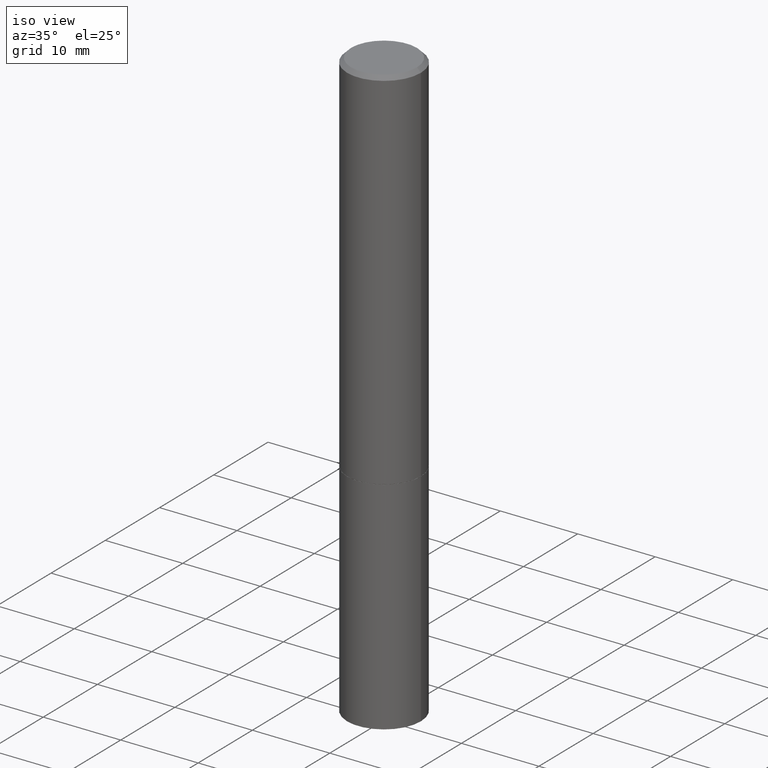
[diagram: clean part render]
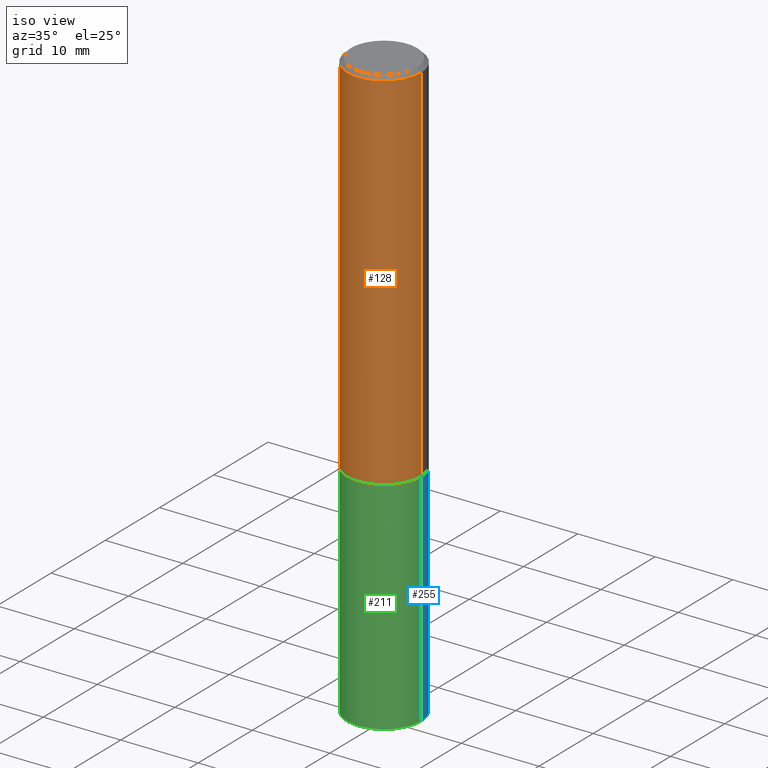
[diagram: same view with three faces highlighted in distinct colors, each labeled with its STEP entity id]
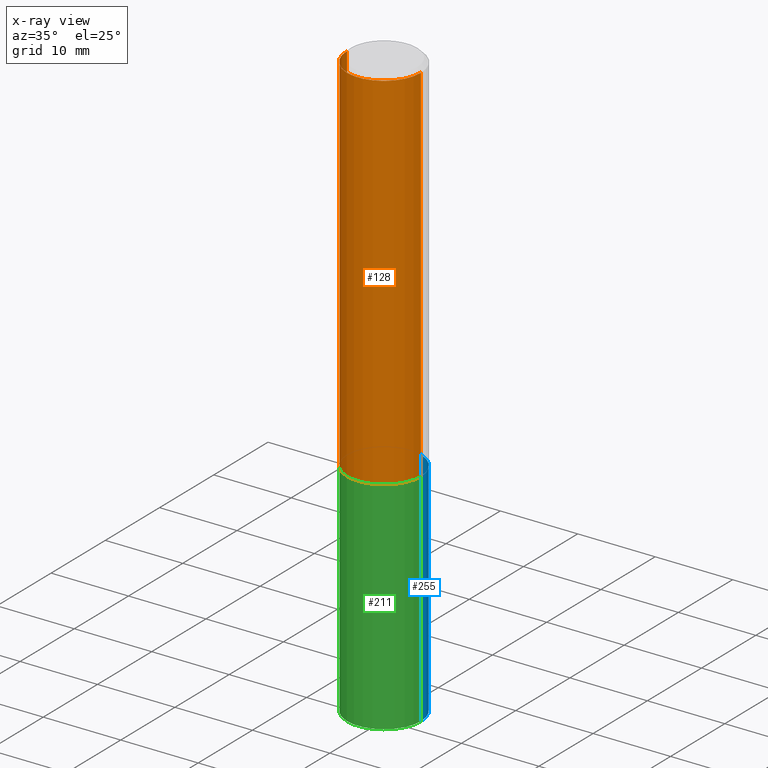
[diagram: x-ray of the same camera — body ghosted, the three highlighted faces saturated]
A machine part, iso view with three faces highlighted in distinct colors.
The next image is the same camera in x-ray (body ghosted, the three faces saturated) — at least one of them is partly hidden behind the body in this view.
Their STEP definitions:

[orange] entity #128 — the highlighted cylindrical surface (partial cylindrical patch) has radius 4.7625 mm, axis along (-0, 0, 1).
#7 = DIRECTION ( 'NONE',  ( -2.445468806185136597E-29, 3.491481338843145583E-15, 1.000000000000000000 ) ) ;
#26 = CARTESIAN_POINT ( 'NONE',  ( 0.1874999999999999167, -1.309305502066174219E-15, 9.142831454617375408E-30 ) ) ;
#28 = VERTEX_POINT ( 'NONE', #181 ) ;
#31 = EDGE_CURVE ( 'NONE', #266, #28, #296, .T. ) ;
#43 = DIRECTION ( 'NONE',  ( -2.445468806185136877E-29, 3.491481338843145188E-15, 1.000000000000000000 ) ) ;
#44 = DIRECTION ( 'NONE',  ( 1.000000000000000000, -6.982962677686265922E-15, 4.876176775795935793E-29 ) ) ;
#52 = AXIS2_PLACEMENT_3D ( 'NONE', #61, #301, #98 ) ;
#61 = CARTESIAN_POINT ( 'NONE',  ( 4.890937612370283668E-31, -6.982962677686305168E-17, -0.02000000000000004205 ) ) ;
#63 = EDGE_CURVE ( 'NONE', #199, #28, #293, .T. ) ;
#69 = CYLINDRICAL_SURFACE ( 'NONE', #284, 0.1874999999999999167 ) ;
#74 = DIRECTION ( 'NONE',  ( -2.445468806185136597E-29, 3.491481338843145583E-15, 1.000000000000000000 ) ) ;
#86 = DIRECTION ( 'NONE',  ( -2.445468806185136877E-29, 3.491481338843145188E-15, 1.000000000000000000 ) ) ;
#93 = ORIENTED_EDGE ( 'NONE', *, *, #338, .F. ) ;
#98 = DIRECTION ( 'NONE',  ( 1.000000000000000000, -6.982962677686265133E-15, 0.000000000000000000 ) ) ;
#105 = DIRECTION ( 'NONE',  ( 1.000000000000000000, -6.982962677686266711E-15, 0.000000000000000000 ) ) ;
#113 = AXIS2_PLACEMENT_3D ( 'NONE', #192, #74, #105 ) ;
#118 = CIRCLE ( 'NONE', #113, 0.1875000000000000278 ) ;
#128 = ADVANCED_FACE ( 'NONE', ( #278 ), #69, .T. ) ;
#134 = CARTESIAN_POINT ( 'NONE',  ( 0.1875000000000000278, -7.852341531058230708E-15, -1.874000000000000110 ) ) ;
#138 = CARTESIAN_POINT ( 'NONE',  ( -0.1874999999999999167, 1.332267629550187257E-15, -9.223003294227943787E-30 ) ) ;
#139 = CARTESIAN_POINT ( 'NONE',  ( 0.000000000000000000, 0.000000000000000000, 0.000000000000000000 ) ) ;
#140 = VECTOR ( 'NONE', #43, 39.37007874015748143 ) ;
#175 = EDGE_CURVE ( 'NONE', #212, #266, #118, .T. ) ;
#181 = CARTESIAN_POINT ( 'NONE',  ( 0.1874999999999997780, -1.356173001359023691E-15, -0.02000000000000004205 ) ) ;
#182 = EDGE_LOOP ( 'NONE', ( #93, #384, #373, #235 ) ) ;
#192 = CARTESIAN_POINT ( 'NONE',  ( 4.582808542790945516E-29, -6.543036028992054911E-15, -1.874000000000000110 ) ) ;
#193 = VECTOR ( 'NONE', #86, 39.37007874015748143 ) ;
#199 = VERTEX_POINT ( 'NONE', #306 ) ;
#212 = VERTEX_POINT ( 'NONE', #374 ) ;
#235 = ORIENTED_EDGE ( 'NONE', *, *, #63, .F. ) ;
#266 = VERTEX_POINT ( 'NONE', #134 ) ;
#278 = FACE_OUTER_BOUND ( 'NONE', #182, .T. ) ;
#284 = AXIS2_PLACEMENT_3D ( 'NONE', #139, #7, #44 ) ;
#285 = LINE ( 'NONE', #138, #140 ) ;
#293 = CIRCLE ( 'NONE', #52, 0.1874999999999997780 ) ;
#296 = LINE ( 'NONE', #26, #193 ) ;
#301 = DIRECTION ( 'NONE',  ( -2.445468806185136597E-29, 3.491481338843145583E-15, 1.000000000000000000 ) ) ;
#306 = CARTESIAN_POINT ( 'NONE',  ( -0.1874999999999997780, 1.239475875289310330E-15, -0.02000000000000004205 ) ) ;
#338 = EDGE_CURVE ( 'NONE', #212, #199, #285, .T. ) ;
#373 = ORIENTED_EDGE ( 'NONE', *, *, #31, .T. ) ;
#374 = CARTESIAN_POINT ( 'NONE',  ( -0.1874999999999999722, -1.974165198334270073E-15, -1.874000000000000110 ) ) ;
#384 = ORIENTED_EDGE ( 'NONE', *, *, #175, .T. ) ;

[blue] entity #255 — the highlighted cylindrical surface (partial cylindrical patch) has radius 4.7625 mm, axis along (-0, 0, 1).
#10 = CARTESIAN_POINT ( 'NONE',  ( -0.1875000000000000278, 1.332267629550188046E-15, -9.223003294227947991E-30 ) ) ;
#14 = ORIENTED_EDGE ( 'NONE', *, *, #323, .F. ) ;
#19 = EDGE_CURVE ( 'NONE', #179, #356, #155, .T. ) ;
#32 = DIRECTION ( 'NONE',  ( 1.000000000000000000, -6.982962677686261189E-15, 0.000000000000000000 ) ) ;
#48 = AXIS2_PLACEMENT_3D ( 'NONE', #363, #104, #101 ) ;
#95 = VERTEX_POINT ( 'NONE', #102 ) ;
#99 = DIRECTION ( 'NONE',  ( -2.445468806185136597E-29, 3.491481338843145583E-15, 1.000000000000000000 ) ) ;
#101 = DIRECTION ( 'NONE',  ( 1.000000000000000000, -6.982962677686266711E-15, 0.000000000000000000 ) ) ;
#102 = CARTESIAN_POINT ( 'NONE',  ( 0.1875000000000000278, -7.855833012397073715E-15, -1.875000000000000000 ) ) ;
#104 = DIRECTION ( 'NONE',  ( -2.445468806185136597E-29, 3.491481338843145583E-15, 1.000000000000000000 ) ) ;
#126 = CARTESIAN_POINT ( 'NONE',  ( 7.336406418555409790E-29, -1.047444401652943635E-14, -3.000000000000000444 ) ) ;
#131 = DIRECTION ( 'NONE',  ( -2.445468806185136877E-29, 3.491481338843145188E-15, 1.000000000000000000 ) ) ;
#132 = FACE_OUTER_BOUND ( 'NONE', #349, .T. ) ;
#133 = CARTESIAN_POINT ( 'NONE',  ( -0.1874999999999996947, -9.165138514463264501E-15, -3.000000000000000444 ) ) ;
#155 = CIRCLE ( 'NONE', #370, 0.1875000000000000278 ) ;
#162 = CYLINDRICAL_SURFACE ( 'NONE', #377, 0.1875000000000000278 ) ;
#173 = ORIENTED_EDGE ( 'NONE', *, *, #19, .T. ) ;
#179 = VERTEX_POINT ( 'NONE', #339 ) ;
#185 = DIRECTION ( 'NONE',  ( -2.445468806185136597E-29, 3.491481338843145583E-15, 1.000000000000000000 ) ) ;
#207 = ORIENTED_EDGE ( 'NONE', *, *, #333, .T. ) ;
#214 = CIRCLE ( 'NONE', #48, 0.1875000000000000278 ) ;
#217 = CARTESIAN_POINT ( 'NONE',  ( -0.1875000000000000278, -7.178218133879978893E-15, -1.875000000000000000 ) ) ;
#218 = DIRECTION ( 'NONE',  ( 1.000000000000000000, -6.982962677686265922E-15, 4.876176775795935793E-29 ) ) ;
#219 = LINE ( 'NONE', #279, #300 ) ;
#238 = VECTOR ( 'NONE', #131, 39.37007874015748143 ) ;
#246 = CARTESIAN_POINT ( 'NONE',  ( 0.000000000000000000, 0.000000000000000000, 0.000000000000000000 ) ) ;
#254 = LINE ( 'NONE', #10, #238 ) ;
#255 = ADVANCED_FACE ( 'NONE', ( #132 ), #162, .T. ) ;
#279 = CARTESIAN_POINT ( 'NONE',  ( 0.1875000000000000278, -1.309305502066175008E-15, 9.142831454617381013E-30 ) ) ;
#295 = VERTEX_POINT ( 'NONE', #217 ) ;
#300 = VECTOR ( 'NONE', #335, 39.37007874015748143 ) ;
#316 = ORIENTED_EDGE ( 'NONE', *, *, #366, .F. ) ;
#323 = EDGE_CURVE ( 'NONE', #179, #95, #219, .T. ) ;
#333 = EDGE_CURVE ( 'NONE', #356, #295, #254, .T. ) ;
#335 = DIRECTION ( 'NONE',  ( -2.445468806185136877E-29, 3.491481338843145188E-15, 1.000000000000000000 ) ) ;
#339 = CARTESIAN_POINT ( 'NONE',  ( 0.1874999999999996947, -1.176078739111159694E-14, -3.000000000000000444 ) ) ;
#349 = EDGE_LOOP ( 'NONE', ( #173, #207, #316, #14 ) ) ;
#356 = VERTEX_POINT ( 'NONE', #133 ) ;
#363 = CARTESIAN_POINT ( 'NONE',  ( 4.585254011597131119E-29, -6.546527510330898707E-15, -1.875000000000000000 ) ) ;
#366 = EDGE_CURVE ( 'NONE', #95, #295, #214, .T. ) ;
#370 = AXIS2_PLACEMENT_3D ( 'NONE', #126, #185, #32 ) ;
#377 = AXIS2_PLACEMENT_3D ( 'NONE', #246, #99, #218 ) ;

[green] entity #211 — the highlighted cylindrical surface (partial cylindrical patch) has radius 4.7625 mm, axis along (-0, 0, 1).
#10 = CARTESIAN_POINT ( 'NONE',  ( -0.1875000000000000278, 1.332267629550188046E-15, -9.223003294227947991E-30 ) ) ;
#11 = CARTESIAN_POINT ( 'NONE',  ( 0.000000000000000000, 0.000000000000000000, 0.000000000000000000 ) ) ;
#15 = FACE_OUTER_BOUND ( 'NONE', #319, .T. ) ;
#25 = EDGE_CURVE ( 'NONE', #356, #179, #268, .T. ) ;
#33 = DIRECTION ( 'NONE',  ( -2.445468806185136597E-29, 3.491481338843145583E-15, 1.000000000000000000 ) ) ;
#54 = ORIENTED_EDGE ( 'NONE', *, *, #25, .T. ) ;
#55 = EDGE_CURVE ( 'NONE', #295, #95, #227, .T. ) ;
#95 = VERTEX_POINT ( 'NONE', #102 ) ;
#102 = CARTESIAN_POINT ( 'NONE',  ( 0.1875000000000000278, -7.855833012397073715E-15, -1.875000000000000000 ) ) ;
#131 = DIRECTION ( 'NONE',  ( -2.445468806185136877E-29, 3.491481338843145188E-15, 1.000000000000000000 ) ) ;
#133 = CARTESIAN_POINT ( 'NONE',  ( -0.1874999999999996947, -9.165138514463264501E-15, -3.000000000000000444 ) ) ;
#142 = DIRECTION ( 'NONE',  ( -2.445468806185136597E-29, 3.491481338843145583E-15, 1.000000000000000000 ) ) ;
#157 = DIRECTION ( 'NONE',  ( 1.000000000000000000, -6.982962677686261189E-15, 0.000000000000000000 ) ) ;
#179 = VERTEX_POINT ( 'NONE', #339 ) ;
#210 = DIRECTION ( 'NONE',  ( -2.445468806185136597E-29, 3.491481338843145583E-15, 1.000000000000000000 ) ) ;
#211 = ADVANCED_FACE ( 'NONE', ( #15 ), #226, .T. ) ;
#217 = CARTESIAN_POINT ( 'NONE',  ( -0.1875000000000000278, -7.178218133879978893E-15, -1.875000000000000000 ) ) ;
#219 = LINE ( 'NONE', #279, #300 ) ;
#226 = CYLINDRICAL_SURFACE ( 'NONE', #332, 0.1875000000000000278 ) ;
#227 = CIRCLE ( 'NONE', #355, 0.1875000000000000278 ) ;
#237 = DIRECTION ( 'NONE',  ( 1.000000000000000000, -6.982962677686266711E-15, 0.000000000000000000 ) ) ;
#238 = VECTOR ( 'NONE', #131, 39.37007874015748143 ) ;
#254 = LINE ( 'NONE', #10, #238 ) ;
#256 = DIRECTION ( 'NONE',  ( 1.000000000000000000, -6.982962677686265922E-15, 4.876176775795935793E-29 ) ) ;
#268 = CIRCLE ( 'NONE', #314, 0.1875000000000000278 ) ;
#270 = CARTESIAN_POINT ( 'NONE',  ( 7.336406418555409790E-29, -1.047444401652943635E-14, -3.000000000000000444 ) ) ;
#279 = CARTESIAN_POINT ( 'NONE',  ( 0.1875000000000000278, -1.309305502066175008E-15, 9.142831454617381013E-30 ) ) ;
#295 = VERTEX_POINT ( 'NONE', #217 ) ;
#300 = VECTOR ( 'NONE', #335, 39.37007874015748143 ) ;
#314 = AXIS2_PLACEMENT_3D ( 'NONE', #270, #33, #157 ) ;
#319 = EDGE_LOOP ( 'NONE', ( #348, #54, #325, #376 ) ) ;
#323 = EDGE_CURVE ( 'NONE', #179, #95, #219, .T. ) ;
#325 = ORIENTED_EDGE ( 'NONE', *, *, #323, .T. ) ;
#332 = AXIS2_PLACEMENT_3D ( 'NONE', #11, #142, #256 ) ;
#333 = EDGE_CURVE ( 'NONE', #356, #295, #254, .T. ) ;
#335 = DIRECTION ( 'NONE',  ( -2.445468806185136877E-29, 3.491481338843145188E-15, 1.000000000000000000 ) ) ;
#339 = CARTESIAN_POINT ( 'NONE',  ( 0.1874999999999996947, -1.176078739111159694E-14, -3.000000000000000444 ) ) ;
#348 = ORIENTED_EDGE ( 'NONE', *, *, #333, .F. ) ;
#355 = AXIS2_PLACEMENT_3D ( 'NONE', #360, #210, #237 ) ;
#356 = VERTEX_POINT ( 'NONE', #133 ) ;
#360 = CARTESIAN_POINT ( 'NONE',  ( 4.585254011597131119E-29, -6.546527510330898707E-15, -1.875000000000000000 ) ) ;
#376 = ORIENTED_EDGE ( 'NONE', *, *, #55, .F. ) ;